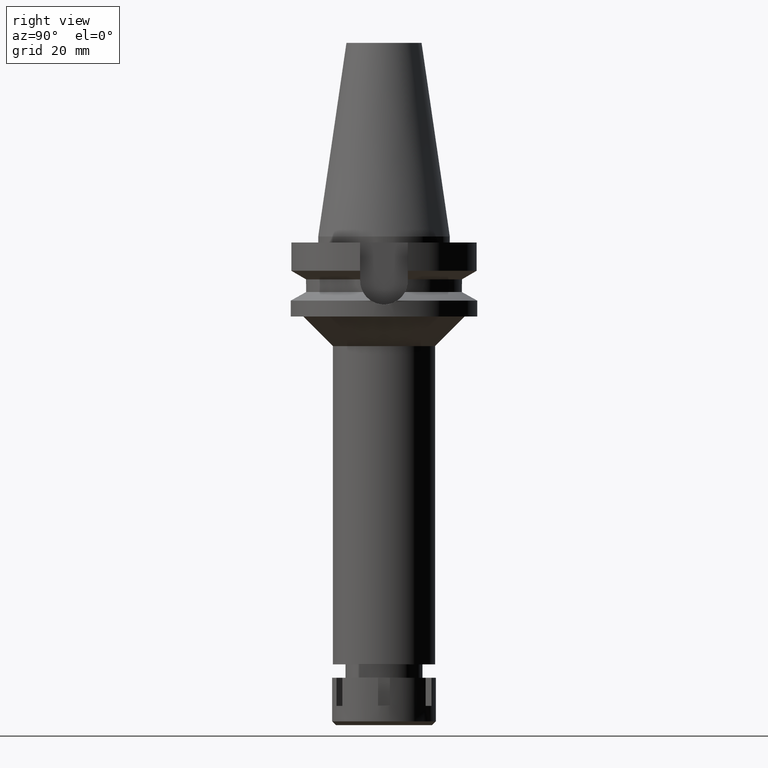
[diagram: clean part render]
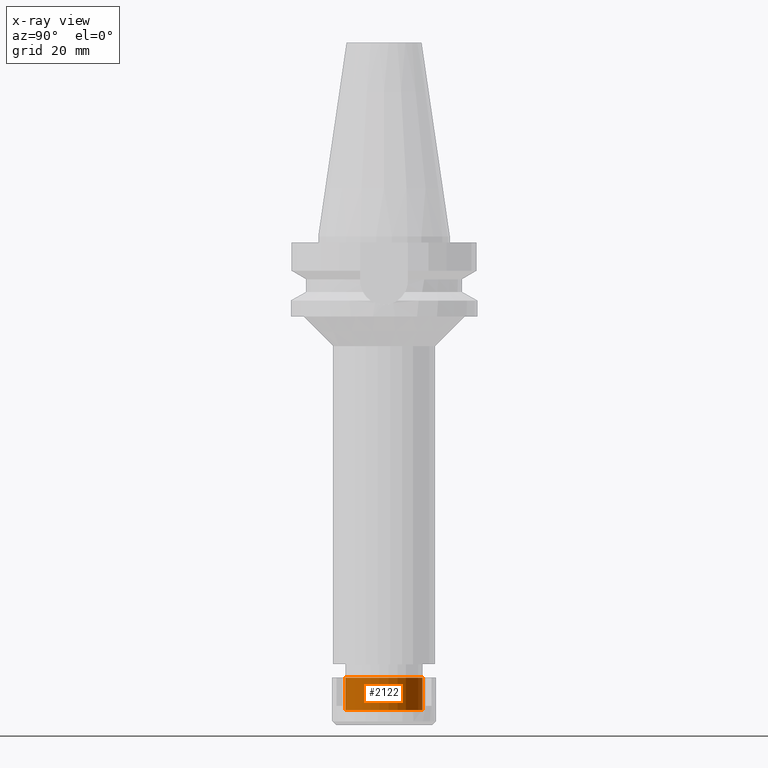
[diagram: x-ray — body ghosted, one internal face saturated and labeled with its STEP entity id]
A machine part, right view, then the same camera in x-ray: the body is ghosted and one INTERNAL B-rep face — a face not visible from any outside direction — is saturated and labeled: STEP entity #2122.
In plain terms, the highlighted cylindrical surface (partial cylindrical patch) has radius 13 mm, axis along (0, 0, -1).
Its self-contained STEP definition (entity closure, byte-faithful):
#31 = VERTEX_POINT ( 'NONE', #1892 ) ;
#113 = DIRECTION ( 'NONE',  ( 0.0000000000000000000, 1.000000000000000000, 0.0000000000000000000 ) ) ;
#128 = ORIENTED_EDGE ( 'NONE', *, *, #1555, .T. ) ;
#398 = VERTEX_POINT ( 'NONE', #1832 ) ;
#447 = CARTESIAN_POINT ( 'NONE',  ( 0.0000000000000000000, 13.00000000000000000, -11.00000000000000000 ) ) ;
#512 = ORIENTED_EDGE ( 'NONE', *, *, #2401, .T. ) ;
#532 = CARTESIAN_POINT ( 'NONE',  ( 0.0000000000000000000, 13.00000000000000000, -11.00000000000000000 ) ) ;
#585 = VERTEX_POINT ( 'NONE', #447 ) ;
#624 = CYLINDRICAL_SURFACE ( 'NONE', #1831, 13.00000000000000000 ) ;
#658 = VERTEX_POINT ( 'NONE', #1145 ) ;
#703 = EDGE_CURVE ( 'NONE', #658, #31, #1379, .T. ) ;
#985 = CARTESIAN_POINT ( 'NONE',  ( 0.0000000000000000000, 0.0000000000000000000, 0.0000000000000000000 ) ) ;
#1145 = CARTESIAN_POINT ( 'NONE',  ( 0.0000000000000000000, -13.00000000000000000, 0.0000000000000000000 ) ) ;
#1303 = DIRECTION ( 'NONE',  ( 0.0000000000000000000, 0.0000000000000000000, 1.000000000000000000 ) ) ;
#1373 = LINE ( 'NONE', #532, #3528 ) ;
#1379 = CIRCLE ( 'NONE', #1739, 13.00000000000000000 ) ;
#1459 = DIRECTION ( 'NONE',  ( 0.0000000000000000000, 0.0000000000000000000, -1.000000000000000000 ) ) ;
#1555 = EDGE_CURVE ( 'NONE', #585, #398, #1827, .T. ) ;
#1686 = EDGE_LOOP ( 'NONE', ( #128, #512, #2960, #2843 ) ) ;
#1739 = AXIS2_PLACEMENT_3D ( 'NONE', #985, #1303, #3487 ) ;
#1794 = LINE ( 'NONE', #2128, #1928 ) ;
#1827 = CIRCLE ( 'NONE', #3290, 13.00000000000000000 ) ;
#1831 = AXIS2_PLACEMENT_3D ( 'NONE', #2090, #2018, #2863 ) ;
#1832 = CARTESIAN_POINT ( 'NONE',  ( 0.0000000000000000000, -13.00000000000000000, -11.00000000000000000 ) ) ;
#1892 = CARTESIAN_POINT ( 'NONE',  ( 0.0000000000000000000, 13.00000000000000000, 0.0000000000000000000 ) ) ;
#1928 = VECTOR ( 'NONE', #2350, 1000.000000000000000 ) ;
#2018 = DIRECTION ( 'NONE',  ( 0.0000000000000000000, 0.0000000000000000000, -1.000000000000000000 ) ) ;
#2090 = CARTESIAN_POINT ( 'NONE',  ( 0.0000000000000000000, 0.0000000000000000000, 0.0000000000000000000 ) ) ;
#2122 = ADVANCED_FACE ( 'NONE', ( #2596 ), #624, .F. ) ;
#2128 = CARTESIAN_POINT ( 'NONE',  ( 0.0000000000000000000, -13.00000000000000000, -11.00000000000000000 ) ) ;
#2350 = DIRECTION ( 'NONE',  ( 0.0000000000000000000, 0.0000000000000000000, 1.000000000000000000 ) ) ;
#2401 = EDGE_CURVE ( 'NONE', #398, #658, #1794, .T. ) ;
#2570 = DIRECTION ( 'NONE',  ( 0.0000000000000000000, 0.0000000000000000000, 1.000000000000000000 ) ) ;
#2596 = FACE_OUTER_BOUND ( 'NONE', #1686, .T. ) ;
#2843 = ORIENTED_EDGE ( 'NONE', *, *, #3280, .F. ) ;
#2863 = DIRECTION ( 'NONE',  ( 0.0000000000000000000, -1.000000000000000000, 0.0000000000000000000 ) ) ;
#2868 = CARTESIAN_POINT ( 'NONE',  ( 0.0000000000000000000, 0.0000000000000000000, -11.00000000000000000 ) ) ;
#2960 = ORIENTED_EDGE ( 'NONE', *, *, #703, .T. ) ;
#3280 = EDGE_CURVE ( 'NONE', #585, #31, #1373, .T. ) ;
#3290 = AXIS2_PLACEMENT_3D ( 'NONE', #2868, #1459, #113 ) ;
#3487 = DIRECTION ( 'NONE',  ( 0.0000000000000000000, -1.000000000000000000, 0.0000000000000000000 ) ) ;
#3528 = VECTOR ( 'NONE', #2570, 1000.000000000000000 ) ;